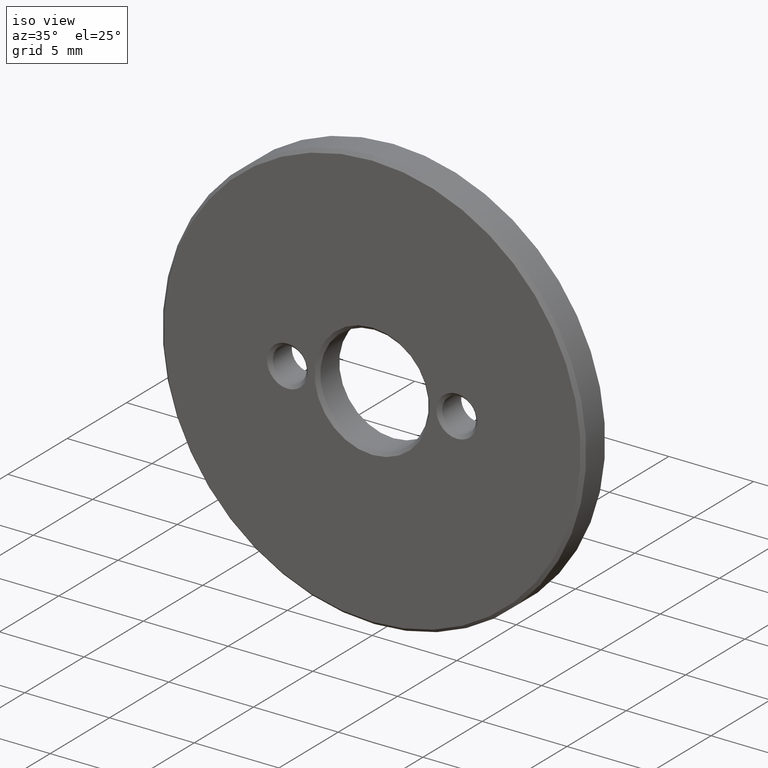
[diagram: clean part render]
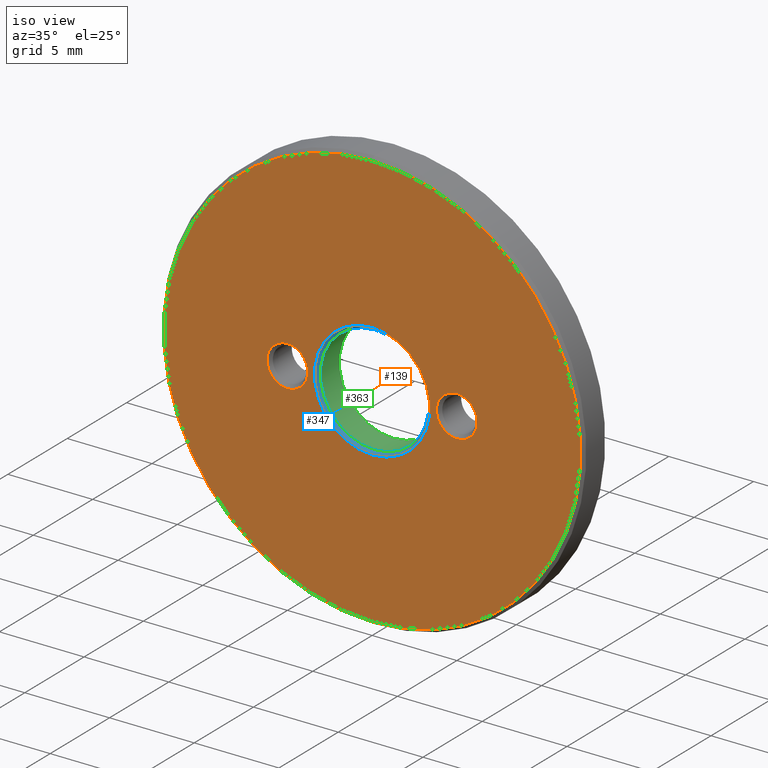
[diagram: same view with three faces highlighted in distinct colors, each labeled with its STEP entity id]
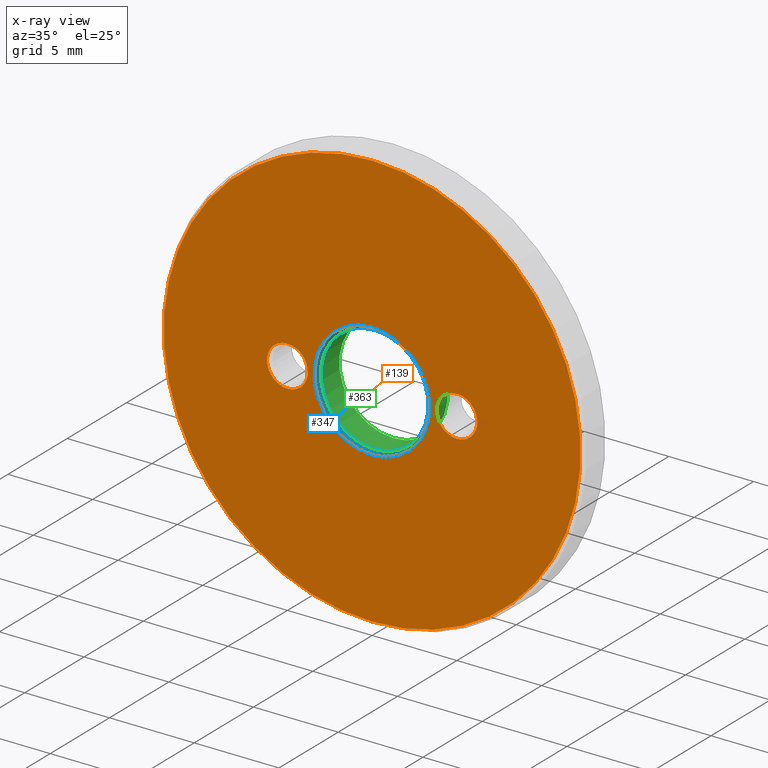
[diagram: x-ray of the same camera — body ghosted, the three highlighted faces saturated]
A machine part, iso view with three faces highlighted in distinct colors.
The next image is the same camera in x-ray (body ghosted, the three faces saturated) — at least one of them is partly hidden behind the body in this view.
Their STEP definitions:

[orange] entity #139 — the highlighted planar face has unit normal (0, 1, 0).
#2 = VERTEX_POINT ( 'NONE', #27 ) ;
#9 = EDGE_LOOP ( 'NONE', ( #87 ) ) ;
#14 = CARTESIAN_POINT ( 'NONE',  ( 0.000000000000000000, 0.000000000000000000, 0.000000000000000000 ) ) ;
#24 = EDGE_CURVE ( 'NONE', #2, #2, #38, .T. ) ;
#27 = CARTESIAN_POINT ( 'NONE',  ( 0.000000000000000000, 0.000000000000000000, 12.29999999999999893 ) ) ;
#37 = ORIENTED_EDGE ( 'NONE', *, *, #24, .T. ) ;
#38 = CIRCLE ( 'NONE', #382, 12.29999999999999893 ) ;
#60 = CARTESIAN_POINT ( 'NONE',  ( -5.000000000000000000, 0.000000000000000000, 1.204999999999997851 ) ) ;
#62 = EDGE_LOOP ( 'NONE', ( #37 ) ) ;
#78 = DIRECTION ( 'NONE',  ( 0.000000000000000000, 0.000000000000000000, 1.000000000000000000 ) ) ;
#81 = FACE_BOUND ( 'NONE', #9, .T. ) ;
#84 = DIRECTION ( 'NONE',  ( 0.000000000000000000, 1.000000000000000000, 0.000000000000000000 ) ) ;
#85 = CARTESIAN_POINT ( 'NONE',  ( 5.000000000000000000, 0.000000000000000000, 1.204999999999996074 ) ) ;
#87 = ORIENTED_EDGE ( 'NONE', *, *, #244, .T. ) ;
#88 = PLANE ( 'NONE',  #193 ) ;
#91 = CIRCLE ( 'NONE', #393, 1.204999999999997851 ) ;
#95 = EDGE_CURVE ( 'NONE', #107, #107, #91, .T. ) ;
#107 = VERTEX_POINT ( 'NONE', #85 ) ;
#113 = AXIS2_PLACEMENT_3D ( 'NONE', #262, #385, #215 ) ;
#118 = VERTEX_POINT ( 'NONE', #213 ) ;
#132 = EDGE_CURVE ( 'NONE', #118, #118, #147, .T. ) ;
#139 = ADVANCED_FACE ( 'NONE', ( #81, #154, #300, #369 ), #88, .F. ) ;
#147 = CIRCLE ( 'NONE', #113, 3.400000000000003908 ) ;
#149 = CARTESIAN_POINT ( 'NONE',  ( -5.000000000000000000, 0.000000000000000000, 0.000000000000000000 ) ) ;
#154 = FACE_BOUND ( 'NONE', #247, .T. ) ;
#183 = EDGE_LOOP ( 'NONE', ( #270 ) ) ;
#193 = AXIS2_PLACEMENT_3D ( 'NONE', #335, #274, #245 ) ;
#202 = DIRECTION ( 'NONE',  ( 0.000000000000000000, 0.000000000000000000, 1.000000000000000000 ) ) ;
#213 = CARTESIAN_POINT ( 'NONE',  ( 0.000000000000000000, 0.000000000000000000, 3.400000000000003908 ) ) ;
#215 = DIRECTION ( 'NONE',  ( 0.000000000000000000, 0.000000000000000000, 1.000000000000000000 ) ) ;
#236 = VERTEX_POINT ( 'NONE', #60 ) ;
#244 = EDGE_CURVE ( 'NONE', #236, #236, #304, .T. ) ;
#245 = DIRECTION ( 'NONE',  ( 0.000000000000000000, -0.000000000000000000, 1.000000000000000000 ) ) ;
#247 = EDGE_LOOP ( 'NONE', ( #371 ) ) ;
#262 = CARTESIAN_POINT ( 'NONE',  ( 0.000000000000000000, 0.000000000000000000, 0.000000000000000000 ) ) ;
#270 = ORIENTED_EDGE ( 'NONE', *, *, #132, .T. ) ;
#274 = DIRECTION ( 'NONE',  ( 0.000000000000000000, 1.000000000000000000, 0.000000000000000000 ) ) ;
#300 = FACE_BOUND ( 'NONE', #183, .T. ) ;
#304 = CIRCLE ( 'NONE', #357, 1.204999999999997851 ) ;
#335 = CARTESIAN_POINT ( 'NONE',  ( 0.000000000000000000, 0.000000000000000000, 0.000000000000000000 ) ) ;
#351 = DIRECTION ( 'NONE',  ( -0.000000000000000000, -1.000000000000000000, -0.000000000000000000 ) ) ;
#357 = AXIS2_PLACEMENT_3D ( 'NONE', #149, #84, #367 ) ;
#359 = CARTESIAN_POINT ( 'NONE',  ( 5.000000000000000000, 0.000000000000000000, -1.836970198721029194E-15 ) ) ;
#367 = DIRECTION ( 'NONE',  ( 0.000000000000000000, 0.000000000000000000, 1.000000000000000000 ) ) ;
#369 = FACE_OUTER_BOUND ( 'NONE', #62, .T. ) ;
#371 = ORIENTED_EDGE ( 'NONE', *, *, #95, .T. ) ;
#382 = AXIS2_PLACEMENT_3D ( 'NONE', #14, #351, #78 ) ;
#385 = DIRECTION ( 'NONE',  ( 0.000000000000000000, 1.000000000000000000, 0.000000000000000000 ) ) ;
#389 = DIRECTION ( 'NONE',  ( 0.000000000000000000, 1.000000000000000000, 0.000000000000000000 ) ) ;
#393 = AXIS2_PLACEMENT_3D ( 'NONE', #359, #389, #202 ) ;

[blue] entity #347 — the highlighted conical surface has half-angle 45 deg.
#36 = CONICAL_SURFACE ( 'NONE', #257, 3.400000000000003908, 0.7853981633974396193 ) ;
#42 = DIRECTION ( 'NONE',  ( 0.000000000000000000, 0.000000000000000000, -1.000000000000000000 ) ) ;
#71 = EDGE_LOOP ( 'NONE', ( #122 ) ) ;
#89 = ORIENTED_EDGE ( 'NONE', *, *, #342, .F. ) ;
#113 = AXIS2_PLACEMENT_3D ( 'NONE', #262, #385, #215 ) ;
#116 = AXIS2_PLACEMENT_3D ( 'NONE', #313, #230, #346 ) ;
#118 = VERTEX_POINT ( 'NONE', #213 ) ;
#122 = ORIENTED_EDGE ( 'NONE', *, *, #132, .F. ) ;
#131 = CIRCLE ( 'NONE', #116, 3.200000000000000178 ) ;
#132 = EDGE_CURVE ( 'NONE', #118, #118, #147, .T. ) ;
#147 = CIRCLE ( 'NONE', #113, 3.400000000000003908 ) ;
#163 = FACE_BOUND ( 'NONE', #307, .T. ) ;
#192 = CARTESIAN_POINT ( 'NONE',  ( 0.000000000000000000, 0.000000000000000000, 0.000000000000000000 ) ) ;
#213 = CARTESIAN_POINT ( 'NONE',  ( 0.000000000000000000, 0.000000000000000000, 3.400000000000003908 ) ) ;
#215 = DIRECTION ( 'NONE',  ( 0.000000000000000000, 0.000000000000000000, 1.000000000000000000 ) ) ;
#230 = DIRECTION ( 'NONE',  ( -0.000000000000000000, -1.000000000000000000, -0.000000000000000000 ) ) ;
#257 = AXIS2_PLACEMENT_3D ( 'NONE', #192, #384, #42 ) ;
#260 = FACE_OUTER_BOUND ( 'NONE', #71, .T. ) ;
#262 = CARTESIAN_POINT ( 'NONE',  ( 0.000000000000000000, 0.000000000000000000, 0.000000000000000000 ) ) ;
#271 = VERTEX_POINT ( 'NONE', #299 ) ;
#299 = CARTESIAN_POINT ( 'NONE',  ( 0.000000000000000000, 0.2000000000000070333, 3.200000000000000178 ) ) ;
#307 = EDGE_LOOP ( 'NONE', ( #89 ) ) ;
#313 = CARTESIAN_POINT ( 'NONE',  ( 0.000000000000000000, 0.2000000000000070333, 0.000000000000000000 ) ) ;
#342 = EDGE_CURVE ( 'NONE', #271, #271, #131, .T. ) ;
#346 = DIRECTION ( 'NONE',  ( 0.000000000000000000, 0.000000000000000000, 1.000000000000000000 ) ) ;
#347 = ADVANCED_FACE ( 'NONE', ( #163, #260 ), #36, .F. ) ;
#384 = DIRECTION ( 'NONE',  ( -0.000000000000000000, -1.000000000000000000, -0.000000000000000000 ) ) ;
#385 = DIRECTION ( 'NONE',  ( 0.000000000000000000, 1.000000000000000000, 0.000000000000000000 ) ) ;

[green] entity #363 — the highlighted cylindrical surface (bore or boss wall) has radius 3.2 mm, axis along (-0, -1, -0).
#13 = CYLINDRICAL_SURFACE ( 'NONE', #397, 3.200000000000000178 ) ;
#22 = CARTESIAN_POINT ( 'NONE',  ( 0.000000000000000000, 1.799999999999996936, 3.200000000000000178 ) ) ;
#49 = DIRECTION ( 'NONE',  ( 0.000000000000000000, 1.000000000000000000, 0.000000000000000000 ) ) ;
#105 = FACE_OUTER_BOUND ( 'NONE', #360, .T. ) ;
#111 = ORIENTED_EDGE ( 'NONE', *, *, #377, .T. ) ;
#112 = EDGE_LOOP ( 'NONE', ( #111 ) ) ;
#116 = AXIS2_PLACEMENT_3D ( 'NONE', #313, #230, #346 ) ;
#131 = CIRCLE ( 'NONE', #116, 3.200000000000000178 ) ;
#133 = DIRECTION ( 'NONE',  ( -0.000000000000000000, -1.000000000000000000, -0.000000000000000000 ) ) ;
#160 = FACE_OUTER_BOUND ( 'NONE', #112, .T. ) ;
#174 = VERTEX_POINT ( 'NONE', #22 ) ;
#187 = AXIS2_PLACEMENT_3D ( 'NONE', #226, #49, #349 ) ;
#197 = CARTESIAN_POINT ( 'NONE',  ( 0.000000000000000000, 2.000000000000000000, 0.000000000000000000 ) ) ;
#226 = CARTESIAN_POINT ( 'NONE',  ( 0.000000000000000000, 1.799999999999996936, 0.000000000000000000 ) ) ;
#230 = DIRECTION ( 'NONE',  ( -0.000000000000000000, -1.000000000000000000, -0.000000000000000000 ) ) ;
#271 = VERTEX_POINT ( 'NONE', #299 ) ;
#294 = DIRECTION ( 'NONE',  ( 0.000000000000000000, 0.000000000000000000, -1.000000000000000000 ) ) ;
#299 = CARTESIAN_POINT ( 'NONE',  ( 0.000000000000000000, 0.2000000000000070333, 3.200000000000000178 ) ) ;
#308 = CIRCLE ( 'NONE', #187, 3.200000000000000178 ) ;
#313 = CARTESIAN_POINT ( 'NONE',  ( 0.000000000000000000, 0.2000000000000070333, 0.000000000000000000 ) ) ;
#334 = ORIENTED_EDGE ( 'NONE', *, *, #342, .T. ) ;
#342 = EDGE_CURVE ( 'NONE', #271, #271, #131, .T. ) ;
#346 = DIRECTION ( 'NONE',  ( 0.000000000000000000, 0.000000000000000000, 1.000000000000000000 ) ) ;
#349 = DIRECTION ( 'NONE',  ( 0.000000000000000000, 0.000000000000000000, 1.000000000000000000 ) ) ;
#360 = EDGE_LOOP ( 'NONE', ( #334 ) ) ;
#363 = ADVANCED_FACE ( 'NONE', ( #105, #160 ), #13, .F. ) ;
#377 = EDGE_CURVE ( 'NONE', #174, #174, #308, .T. ) ;
#397 = AXIS2_PLACEMENT_3D ( 'NONE', #197, #133, #294 ) ;